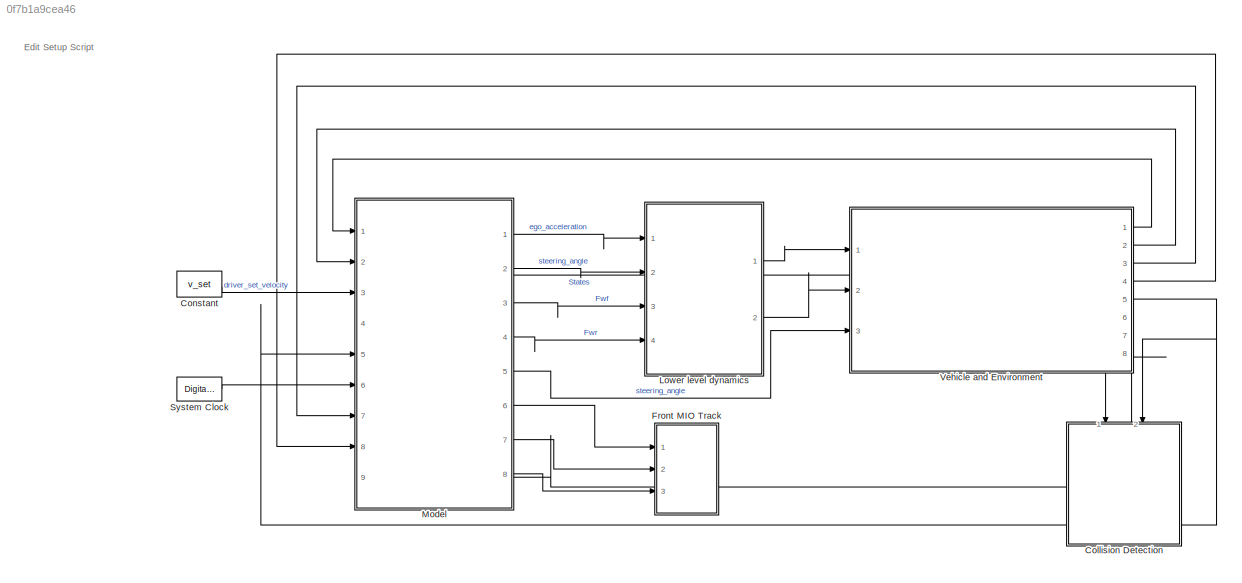
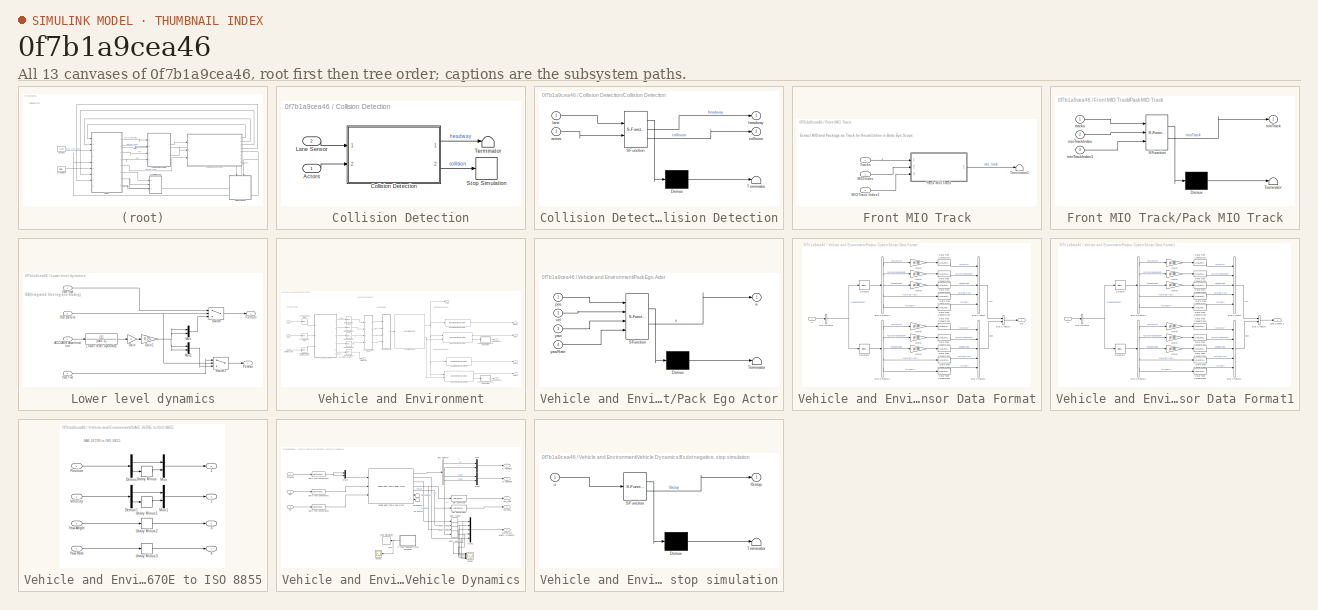
[diagram: thumbnail index - all 13 canvases of the model, root first then tree order]
MODEL slx_0f7b1a9cea46
KIND model
CONFIG AbsTol = auto
CONFIG EnableMultiTasking = off
CONFIG FixedStep = auto
CONFIG MaxStep = auto
CONFIG MinStep = auto
CONFIG PostLoadFcn = helperLFSetUp
CONFIG RelTol = 1e-3
CONFIG SampleTimeConstraint = Unconstrained
CONFIG SolverName = VariableStepAuto
CONFIG StartTime = 0.0
CONFIG StopTime = simStopTime
BLOCK [SubSystem] Collision Detection
  Ports = [2]
  RequestExecContextInheritance = off
BLOCK [Inport] Collision Detection/Actors
BLOCK [SubSystem] Collision Detection/Collision Detection
  ErrorFcn = Stateflow.Translate.translate
  PermitHierarchicalResolution = ExplicitOnly
  Ports = [2, 2]
  RequestExecContextInheritance = off
  SFBlockType = MATLAB Function
  TreatAsAtomicUnit = on
BLOCK [Demux] Collision Detection/Collision Detection/ Demux 
  Outputs = 1
  Ports = [1, 1]
BLOCK [S-Function] Collision Detection/Collision Detection/ SFunction 
  EnableBusSupport = on
  FunctionName = sf_sfun
  PortCounts = [2 3]
  Ports = [2, 3]
  SFcnIsStateOwnerBlock = off
  SFunctionDeploymentMode = off
  Tag = Stateflow S-Function 1
BLOCK [Terminator] Collision Detection/Collision Detection/ Terminator 
BLOCK [Inport] Collision Detection/Collision Detection/actors
  Port = 2
BLOCK [Outport] Collision Detection/Collision Detection/collision
  Port = 2
  VectorParamsAs1DForOutWhenUnconnected = off
BLOCK [Outport] Collision Detection/Collision Detection/headway
  VectorParamsAs1DForOutWhenUnconnected = off
BLOCK [Inport] Collision Detection/Collision Detection/lane
BLOCK [Inport] Collision Detection/Lane Sensor
  Port = 2
BLOCK [Stop] Collision Detection/Stop Simulation
BLOCK [Terminator] Collision Detection/Terminator
BLOCK [Constant] Constant
  SampleTime = Ts
  Value = v_set
BLOCK [SubSystem] Front MIO Track
  Ports = [3]
  RequestExecContextInheritance = off
BLOCK [Inport] Front MIO Track/MIO Index
  Port = 2
BLOCK [Inport] Front MIO Track/MIO Track Index1
  Port = 3
BLOCK [SubSystem] Front MIO Track/Pack MIO Track
  ErrorFcn = Stateflow.Translate.translate
  PermitHierarchicalResolution = ExplicitOnly
  Ports = [3, 1]
  RequestExecContextInheritance = off
  SFBlockType = MATLAB Function
  TreatAsAtomicUnit = on
BLOCK [Demux] Front MIO Track/Pack MIO Track/ Demux 
  Outputs = 1
  Ports = [1, 1]
BLOCK [S-Function] Front MIO Track/Pack MIO Track/ SFunction 
  EnableBusSupport = on
  FunctionName = sf_sfun
  PortCounts = [3 2]
  Ports = [3, 2]
  SFcnIsStateOwnerBlock = off
  SFunctionDeploymentMode = off
  Tag = Stateflow S-Function 2
BLOCK [Terminator] Front MIO Track/Pack MIO Track/ Terminator 
BLOCK [Outport] Front MIO Track/Pack MIO Track/mioTrack
  VectorParamsAs1DForOutWhenUnconnected = off
BLOCK [Inport] Front MIO Track/Pack MIO Track/mioTrackIndex
  Port = 2
BLOCK [Inport] Front MIO Track/Pack MIO Track/mioTrackIndex1
  Port = 3
BLOCK [Inport] Front MIO Track/Pack MIO Track/tracks
BLOCK [Terminator] Front MIO Track/Terminator1
BLOCK [Inport] Front MIO Track/Tracks
BLOCK [SubSystem] Lower level dynamics
  Ports = [4, 2]
  RequestExecContextInheritance = off
BLOCK [Inport] Lower level dynamics/ACC//AEB Acceleration
BLOCK [Outport] Lower level dynamics/Fx front
  VectorParamsAs1DForOutWhenUnconnected = off
BLOCK [Outport] Lower level dynamics/Fx rear
  Port = 2
  VectorParamsAs1DForOutWhenUnconnected = off
BLOCK [Gain] Lower level dynamics/Gain
  Gain = m
BLOCK [Gain] Lower level dynamics/Gain1
  Gain = 0.25
BLOCK [Inport] Lower level dynamics/ISB Fwf
  Port = 3
BLOCK [Inport] Lower level dynamics/ISB Fwr
  Port = 4
BLOCK [Inport] Lower level dynamics/ISB statuts
  Port = 2
BLOCK [TransferFcn] Lower level dynamics/Lower level dynamics
  Denominator = [tau 1]
BLOCK [Mux] Lower level dynamics/Mux
  DisplayOption = bar
  Inputs = 2
  Ports = [2, 1]
BLOCK [Mux] Lower level dynamics/Mux1
  DisplayOption = bar
  Inputs = 2
  Ports = [2, 1]
BLOCK [Switch] Lower level dynamics/Switch
  Criteria = u2 ~= 0
  InputSameDT = off
  SaturateOnIntegerOverflow = off
BLOCK [Switch] Lower level dynamics/Switch1
  Criteria = u2 ~= 0
  InputSameDT = off
  SaturateOnIntegerOverflow = off
BLOCK [ModelReference] Model
  ModelNameDialog = Controller.slx
  ModelReferenceVersion = 3.8
  Ports = [9, 8]
BLOCK [DigitalClock] System Clock
  SampleTime = Ts
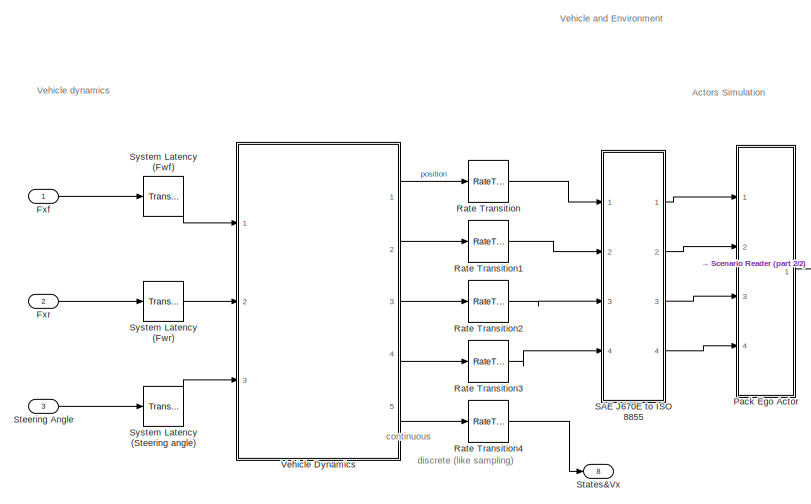
[diagram: Vehicle and Environment - part 1/2, middle left region]
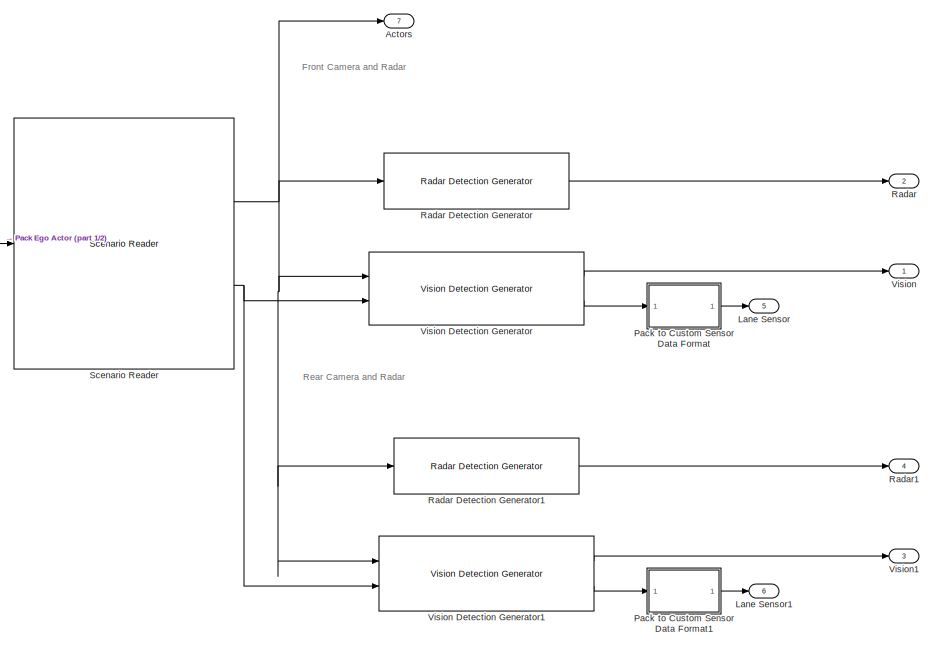
[diagram: Vehicle and Environment - part 2/2, right side, full height]
BLOCK [SubSystem] Vehicle and Environment
  PortSchema = {"entries":[{"content":{"sides":[{"content":{"connectorIds":["In1","In2","In3"]},"type":"ConnectorPlacement.EquallySpacedRectSide","uuid":"aa8441a5-2187-4ae6-b6bb-7d59e3966398"},{"content":{"connectorIds":["Out1","Out2","Out3","Out4","Out5"],"side":"RIGHT"},"type":"ConnectorPlacement.EquallySpacedRectSide","uuid":"2463696f-436c-42ea-9ab5-5fe7e39bf1c6"},{"content":{"connectorIds":["Out8"],"side":"T...<+445ch>
  Ports = [3, 8]
  RequestExecContextInheritance = off
BLOCK [Outport] Vehicle and Environment/Actors
  Port = 7
  VectorParamsAs1DForOutWhenUnconnected = off
BLOCK [Inport] Vehicle and Environment/Fxf
  Unit = N
BLOCK [Inport] Vehicle and Environment/Fxr
  Port = 2
  Unit = N
BLOCK [Outport] Vehicle and Environment/Lane Sensor
  Port = 5
  VectorParamsAs1DForOutWhenUnconnected = off
BLOCK [Outport] Vehicle and Environment/Lane Sensor1
  Port = 6
  VectorParamsAs1DForOutWhenUnconnected = off
BLOCK [SubSystem] Vehicle and Environment/Pack Ego Actor
  ErrorFcn = Stateflow.Translate.translate
  PermitHierarchicalResolution = ExplicitOnly
  Ports = [4, 1]
  RequestExecContextInheritance = off
  SFBlockType = MATLAB Function
  TreatAsAtomicUnit = on
BLOCK [Demux] Vehicle and Environment/Pack Ego Actor/ Demux 
  Outputs = 1
  Ports = [1, 1]
BLOCK [S-Function] Vehicle and Environment/Pack Ego Actor/ SFunction 
  EnableBusSupport = on
  FunctionName = sf_sfun
  PortCounts = [4 2]
  Ports = [4, 2]
  SFcnIsStateOwnerBlock = off
  SFunctionDeploymentMode = off
  Tag = Stateflow S-Function 5
BLOCK [Terminator] Vehicle and Environment/Pack Ego Actor/ Terminator 
BLOCK [Outport] Vehicle and Environment/Pack Ego Actor/a
  VectorParamsAs1DForOutWhenUnconnected = off
BLOCK [Inport] Vehicle and Environment/Pack Ego Actor/pos
BLOCK [Inport] Vehicle and Environment/Pack Ego Actor/vel
  Port = 2
BLOCK [Inport] Vehicle and Environment/Pack Ego Actor/yaw
  Port = 3
BLOCK [Inport] Vehicle and Environment/Pack Ego Actor/yawRate
  Port = 4
BLOCK [SubSystem] Vehicle and Environment/Pack to Custom Sensor Data Format
  Ports = [1, 1]
  RequestExecContextInheritance = off
BLOCK [BusCreator] Vehicle and Environment/Pack to Custom Sensor Data Format/Bus Creator
  DisplayOption = bar
  InheritFromInputs = on
  Inputs = Curvature,CurvatureDerivative,HeadingAngle,LateralOffset,Strength
  OutDataTypeStr = Bus: LaneSensorBoundaries
  Ports = [5, 1]
BLOCK [BusCreator] Vehicle and Environment/Pack to Custom Sensor Data Format/Bus Creator1
  DisplayOption = bar
  InheritFromInputs = on
  Inputs = Curvature,CurvatureDerivative,HeadingAngle,LateralOffset,Strength
  OutDataTypeStr = Bus: LaneSensorBoundaries
  Ports = [5, 1]
BLOCK [BusCreator] Vehicle and Environment/Pack to Custom Sensor Data Format/Bus Creator2
  DisplayOption = bar
  InheritFromInputs = on
  Inputs = Left,Right
  OutDataTypeStr = Bus: LaneSensor
  Ports = [2, 1]
BLOCK [BusSelector] Vehicle and Environment/Pack to Custom Sensor Data Format/Bus Selector
  OutputSignals = LaneBoundaries
  Ports = [1, 1]
BLOCK [BusSelector] Vehicle and Environment/Pack to Custom Sensor Data Format/Bus Selector1
  OutputSignals = Curvature,CurvatureDerivative,HeadingAngle,LateralOffset,Strength
  Ports = [1, 5]
BLOCK [BusSelector] Vehicle and Environment/Pack to Custom Sensor Data Format/Bus Selector2
  OutputSignals = Curvature,CurvatureDerivative,HeadingAngle,LateralOffset,Strength
  Ports = [1, 5]
BLOCK [DataTypeConversion] Vehicle and Environment/Pack to Custom Sensor Data Format/Data Type Conversion
  RndMeth = Floor
  SaturateOnIntegerOverflow = off
BLOCK [DataTypeConversion] Vehicle and Environment/Pack to Custom Sensor Data Format/Data Type Conversion1
  RndMeth = Floor
  SaturateOnIntegerOverflow = off
BLOCK [DataTypeConversion] Vehicle and Environment/Pack to Custom Sensor Data Format/Data Type Conversion2
  RndMeth = Floor
  SaturateOnIntegerOverflow = off
BLOCK [DataTypeConversion] Vehicle and Environment/Pack to Custom Sensor Data Format/Data Type Conversion3
  RndMeth = Floor
  SaturateOnIntegerOverflow = off
BLOCK [DataTypeConversion] Vehicle and Environment/Pack to Custom Sensor Data Format/Data Type Conversion4
  RndMeth = Floor
  SaturateOnIntegerOverflow = off
BLOCK [DataTypeConversion] Vehicle and Environment/Pack to Custom Sensor Data Format/Data Type Conversion5
  RndMeth = Floor
  SaturateOnIntegerOverflow = off
BLOCK [DataTypeConversion] Vehicle and Environment/Pack to Custom Sensor Data Format/Data Type Conversion6
  RndMeth = Floor
  SaturateOnIntegerOverflow = off
BLOCK [DataTypeConversion] Vehicle and Environment/Pack to Custom Sensor Data Format/Data Type Conversion7
  RndMeth = Floor
  SaturateOnIntegerOverflow = off
BLOCK [DataTypeConversion] Vehicle and Environment/Pack to Custom Sensor Data Format/Data Type Conversion8
  RndMeth = Floor
  SaturateOnIntegerOverflow = off
BLOCK [DataTypeConversion] Vehicle and Environment/Pack to Custom Sensor Data Format/Data Type Conversion9
  RndMeth = Floor
  SaturateOnIntegerOverflow = off
BLOCK [Gain] Vehicle and Environment/Pack to Custom Sensor Data Format/Gain1
  Gain = pi/180
BLOCK [Gain] Vehicle and Environment/Pack to Custom Sensor Data Format/Gain2
  Gain = pi/180
BLOCK [Gain] Vehicle and Environment/Pack to Custom Sensor Data Format/Gain3
  Gain = pi/180
BLOCK [Gain] Vehicle and Environment/Pack to Custom Sensor Data Format/Gain4
  Gain = pi/180
BLOCK [Gain] Vehicle and Environment/Pack to Custom Sensor Data Format/Gain5
  Gain = pi/180
BLOCK [Gain] Vehicle and Environment/Pack to Custom Sensor Data Format/Gain7
  Gain = pi/180
BLOCK [Inport] Vehicle and Environment/Pack to Custom Sensor Data Format/In
BLOCK [Outport] Vehicle and Environment/Pack to Custom Sensor Data Format/Out
  VectorParamsAs1DForOutWhenUnconnected = off
BLOCK [Selector] Vehicle and Environment/Pack to Custom Sensor Data Format/Selector
  IndexOptions = Index vector (dialog)
  Indices = 1
  InputPortWidth = 2
  OutputSizes = 1
  Ports = [1, 1]
BLOCK [Selector] Vehicle and Environment/Pack to Custom Sensor Data Format/Selector1
  IndexOptions = Index vector (dialog)
  Indices = 2
  InputPortWidth = 2
  OutputSizes = 1
  Ports = [1, 1]
BLOCK [SubSystem] Vehicle and Environment/Pack to Custom Sensor Data Format1
  Ports = [1, 1]
  RequestExecContextInheritance = off
BLOCK [BusCreator] Vehicle and Environment/Pack to Custom Sensor Data Format1/Bus Creator
  DisplayOption = bar
  InheritFromInputs = on
  Inputs = Curvature,CurvatureDerivative,HeadingAngle,LateralOffset,Strength
  OutDataTypeStr = Bus: LaneSensorBoundaries
  Ports = [5, 1]
BLOCK [BusCreator] Vehicle and Environment/Pack to Custom Sensor Data Format1/Bus Creator1
  DisplayOption = bar
  InheritFromInputs = on
  Inputs = Curvature,CurvatureDerivative,HeadingAngle,LateralOffset,Strength
  OutDataTypeStr = Bus: LaneSensorBoundaries
  Ports = [5, 1]
BLOCK [BusCreator] Vehicle and Environment/Pack to Custom Sensor Data Format1/Bus Creator2
  DisplayOption = bar
  InheritFromInputs = on
  Inputs = Left,Right
  OutDataTypeStr = Bus: LaneSensor
  Ports = [2, 1]
BLOCK [BusSelector] Vehicle and Environment/Pack to Custom Sensor Data Format1/Bus Selector
  OutputSignals = LaneBoundaries
  Ports = [1, 1]
BLOCK [BusSelector] Vehicle and Environment/Pack to Custom Sensor Data Format1/Bus Selector1
  OutputSignals = Curvature,CurvatureDerivative,HeadingAngle,LateralOffset,Strength
  Ports = [1, 5]
BLOCK [BusSelector] Vehicle and Environment/Pack to Custom Sensor Data Format1/Bus Selector2
  OutputSignals = Curvature,CurvatureDerivative,HeadingAngle,LateralOffset,Strength
  Ports = [1, 5]
BLOCK [DataTypeConversion] Vehicle and Environment/Pack to Custom Sensor Data Format1/Data Type Conversion
  RndMeth = Floor
  SaturateOnIntegerOverflow = off
BLOCK [DataTypeConversion] Vehicle and Environment/Pack to Custom Sensor Data Format1/Data Type Conversion1
  RndMeth = Floor
  SaturateOnIntegerOverflow = off
BLOCK [DataTypeConversion] Vehicle and Environment/Pack to Custom Sensor Data Format1/Data Type Conversion2
  RndMeth = Floor
  SaturateOnIntegerOverflow = off
BLOCK [DataTypeConversion] Vehicle and Environment/Pack to Custom Sensor Data Format1/Data Type Conversion3
  RndMeth = Floor
  SaturateOnIntegerOverflow = off
BLOCK [DataTypeConversion] Vehicle and Environment/Pack to Custom Sensor Data Format1/Data Type Conversion4
  RndMeth = Floor
  SaturateOnIntegerOverflow = off
BLOCK [DataTypeConversion] Vehicle and Environment/Pack to Custom Sensor Data Format1/Data Type Conversion5
  RndMeth = Floor
  SaturateOnIntegerOverflow = off
BLOCK [DataTypeConversion] Vehicle and Environment/Pack to Custom Sensor Data Format1/Data Type Conversion6
  RndMeth = Floor
  SaturateOnIntegerOverflow = off
BLOCK [DataTypeConversion] Vehicle and Environment/Pack to Custom Sensor Data Format1/Data Type Conversion7
  RndMeth = Floor
  SaturateOnIntegerOverflow = off
BLOCK [DataTypeConversion] Vehicle and Environment/Pack to Custom Sensor Data Format1/Data Type Conversion8
  RndMeth = Floor
  SaturateOnIntegerOverflow = off
BLOCK [DataTypeConversion] Vehicle and Environment/Pack to Custom Sensor Data Format1/Data Type Conversion9
  RndMeth = Floor
  SaturateOnIntegerOverflow = off
BLOCK [Gain] Vehicle and Environment/Pack to Custom Sensor Data Format1/Gain1
  Gain = pi/180
BLOCK [Gain] Vehicle and Environment/Pack to Custom Sensor Data Format1/Gain2
  Gain = pi/180
BLOCK [Gain] Vehicle and Environment/Pack to Custom Sensor Data Format1/Gain3
  Gain = pi/180
BLOCK [Gain] Vehicle and Environment/Pack to Custom Sensor Data Format1/Gain4
  Gain = pi/180
BLOCK [Gain] Vehicle and Environment/Pack to Custom Sensor Data Format1/Gain5
  Gain = pi/180
BLOCK [Gain] Vehicle and Environment/Pack to Custom Sensor Data Format1/Gain7
  Gain = pi/180
BLOCK [Inport] Vehicle and Environment/Pack to Custom Sensor Data Format1/In
BLOCK [Outport] Vehicle and Environment/Pack to Custom Sensor Data Format1/Lane Sensor 1
  VectorParamsAs1DForOutWhenUnconnected = off
BLOCK [Selector] Vehicle and Environment/Pack to Custom Sensor Data Format1/Selector
  IndexOptions = Index vector (dialog)
  Indices = 1
  InputPortWidth = 2
  OutputSizes = 1
  Ports = [1, 1]
BLOCK [Selector] Vehicle and Environment/Pack to Custom Sensor Data Format1/Selector1
  IndexOptions = Index vector (dialog)
  Indices = 2
  InputPortWidth = 2
  OutputSizes = 1
  Ports = [1, 1]
BLOCK [Outport] Vehicle and Environment/Radar
  Port = 2
  VectorParamsAs1DForOutWhenUnconnected = off
BLOCK [Reference] Vehicle and Environment/Radar Detection Generator  REF=drivingscenarioandsensors/Radar Detection Generator
  Ports = [1, 1]
  SourceBlock = drivingscenarioandsensors/Radar Detection Generator
  SourceProductBaseCode = DR
  SourceType = radarDetectionGenerator
BLOCK [Reference] Vehicle and Environment/Radar Detection Generator1  REF=drivingscenarioandsensors/Radar Detection Generator
  Ports = [1, 1]
  SourceBlock = drivingscenarioandsensors/Radar Detection Generator
  SourceProductBaseCode = DR
  SourceType = radarDetectionGenerator
BLOCK [Outport] Vehicle and Environment/Radar1
  Port = 4
  VectorParamsAs1DForOutWhenUnconnected = off
BLOCK [RateTransition] Vehicle and Environment/Rate Transition
  OutPortSampleTime = Ts
BLOCK [RateTransition] Vehicle and Environment/Rate Transition1
  OutPortSampleTime = Ts
BLOCK [RateTransition] Vehicle and Environment/Rate Transition2
  OutPortSampleTime = Ts
BLOCK [RateTransition] Vehicle and Environment/Rate Transition3
  OutPortSampleTime = Ts
BLOCK [RateTransition] Vehicle and Environment/Rate Transition4
  OutPortSampleTime = Ts
BLOCK [SubSystem] Vehicle and Environment/SAE J670E to ISO 8855
  Ports = [4, 4]
  RequestExecContextInheritance = off
BLOCK [Outport] Vehicle and Environment/SAE J670E to ISO 8855/1
  VectorParamsAs1DForOutWhenUnconnected = off
BLOCK [Outport] Vehicle and Environment/SAE J670E to ISO 8855/2
  Port = 2
  VectorParamsAs1DForOutWhenUnconnected = off
BLOCK [Outport] Vehicle and Environment/SAE J670E to ISO 8855/3
  Port = 3
  VectorParamsAs1DForOutWhenUnconnected = off
BLOCK [Outport] Vehicle and Environment/SAE J670E to ISO 8855/4
  Port = 4
  VectorParamsAs1DForOutWhenUnconnected = off
BLOCK [Demux] Vehicle and Environment/SAE J670E to ISO 8855/Demux
  Outputs = 2
  Ports = [1, 2]
BLOCK [Demux] Vehicle and Environment/SAE J670E to ISO 8855/Demux1
  Outputs = 2
  Ports = [1, 2]
BLOCK [Mux] Vehicle and Environment/SAE J670E to ISO 8855/Mux
  DisplayOption = bar
  Inputs = 2
  Ports = [2, 1]
BLOCK [Mux] Vehicle and Environment/SAE J670E to ISO 8855/Mux1
  DisplayOption = bar
  Inputs = 2
  Ports = [2, 1]
BLOCK [Inport] Vehicle and Environment/SAE J670E to ISO 8855/Position
  Unit = m
BLOCK [UnaryMinus] Vehicle and Environment/SAE J670E to ISO 8855/Unary Minus
BLOCK [UnaryMinus] Vehicle and Environment/SAE J670E to ISO 8855/Unary Minus1
BLOCK [UnaryMinus] Vehicle and Environment/SAE J670E to ISO 8855/Unary Minus2
BLOCK [UnaryMinus] Vehicle and Environment/SAE J670E to ISO 8855/Unary Minus3
BLOCK [Inport] Vehicle and Environment/SAE J670E to ISO 8855/Velocity
  Port = 2
  Unit = m/s
BLOCK [Inport] Vehicle and Environment/SAE J670E to ISO 8855/Yaw Angle
  Port = 3
  Unit = deg
BLOCK [Inport] Vehicle and Environment/SAE J670E to ISO 8855/Yaw Rate
  Port = 4
  Unit = deg/s
BLOCK [Reference] Vehicle and Environment/Scenario Reader  REF=drivingscenarioandsensors/Scenario Reader
  Ports = [1, 2]
  SourceBlock = drivingscenarioandsensors/Scenario Reader
  SourceProductBaseCode = DR
  SourceType = driving.scenario.internal.ScenarioReader
BLOCK [Outport] Vehicle and Environment/States&Vx
  Port = 8
  VectorParamsAs1DForOutWhenUnconnected = off
BLOCK [Inport] Vehicle and Environment/Steering Angle
  Port = 3
  Unit = rad
BLOCK [TransportDelay] Vehicle and Environment/System Latency (Fwf)
  DelayTime = Ts
  Ports = [1, 1]
BLOCK [TransportDelay] Vehicle and Environment/System Latency (Fwr)
  DelayTime = Ts
  Ports = [1, 1]
BLOCK [TransportDelay] Vehicle and Environment/System Latency (Steering angle)
  DelayTime = Ts
  Ports = [1, 1]
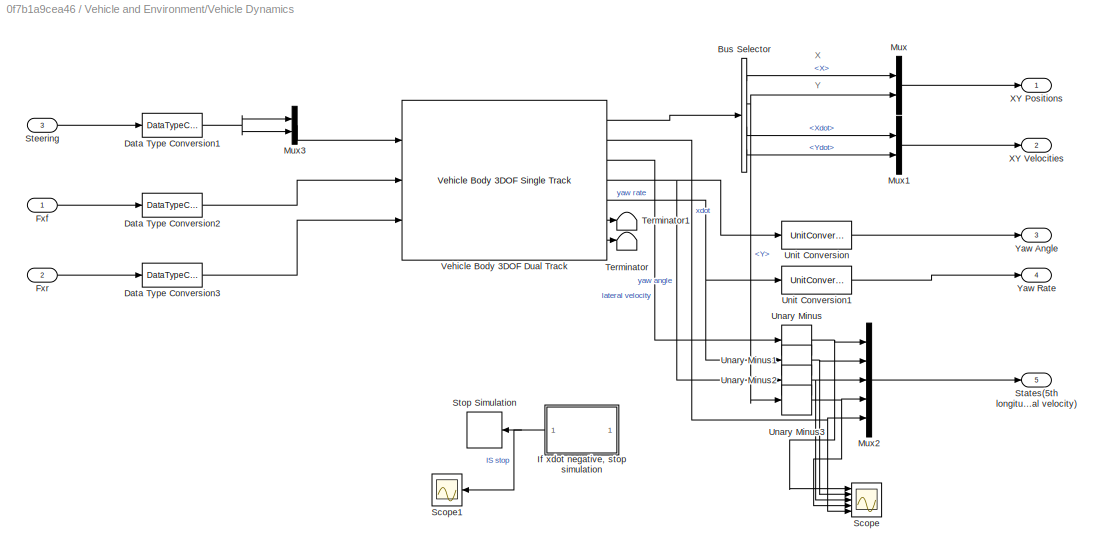
BLOCK [SubSystem] Vehicle and Environment/Vehicle Dynamics
  Ports = [3, 5]
  RequestExecContextInheritance = off
  VariantControl = Variant2
BLOCK [BusSelector] Vehicle and Environment/Vehicle Dynamics/Bus Selector
  OutputSignals = InertFrm.Cg.Disp.X,InertFrm.Cg.Disp.Y,InertFrm.Cg.Vel.Xdot,InertFrm.Cg.Vel.Ydot
  Ports = [1, 4]
BLOCK [DataTypeConversion] Vehicle and Environment/Vehicle Dynamics/Data Type Conversion1
  RndMeth = Floor
  SaturateOnIntegerOverflow = off
BLOCK [DataTypeConversion] Vehicle and Environment/Vehicle Dynamics/Data Type Conversion2
  RndMeth = Floor
  SaturateOnIntegerOverflow = off
BLOCK [DataTypeConversion] Vehicle and Environment/Vehicle Dynamics/Data Type Conversion3
  RndMeth = Floor
  SaturateOnIntegerOverflow = off
BLOCK [Inport] Vehicle and Environment/Vehicle Dynamics/Fxf
  Unit = N
BLOCK [Inport] Vehicle and Environment/Vehicle Dynamics/Fxr
  Port = 2
  Unit = N
BLOCK [SubSystem] Vehicle and Environment/Vehicle Dynamics/If xdot negative, stop simulation
  Commented = on
  ErrorFcn = Stateflow.Translate.translate
  PermitHierarchicalResolution = ExplicitOnly
  Ports = [1, 1]
  RequestExecContextInheritance = off
  SFBlockType = MATLAB Function
  TreatAsAtomicUnit = on
BLOCK [Demux] Vehicle and Environment/Vehicle Dynamics/If xdot negative, stop simulation/ Demux 
  Outputs = 1
  Ports = [1, 1]
BLOCK [S-Function] Vehicle and Environment/Vehicle Dynamics/If xdot negative, stop simulation/ SFunction 
  EnableBusSupport = on
  FunctionName = sf_sfun
  PortCounts = [1 2]
  Ports = [1, 2]
  SFcnIsStateOwnerBlock = off
  SFunctionDeploymentMode = off
  Tag = Stateflow S-Function 3
BLOCK [Terminator] Vehicle and Environment/Vehicle Dynamics/If xdot negative, stop simulation/ Terminator 
BLOCK [Outport] Vehicle and Environment/Vehicle Dynamics/If xdot negative, stop simulation/ISstop
BLOCK [Inport] Vehicle and Environment/Vehicle Dynamics/If xdot negative, stop simulation/u
BLOCK [Mux] Vehicle and Environment/Vehicle Dynamics/Mux
  DisplayOption = bar
  Inputs = 2
  Ports = [2, 1]
BLOCK [Mux] Vehicle and Environment/Vehicle Dynamics/Mux1
  DisplayOption = bar
  Inputs = 2
  Ports = [2, 1]
BLOCK [Mux] Vehicle and Environment/Vehicle Dynamics/Mux2
  DisplayOption = bar
  Inputs = 5
  Ports = [5, 1]
BLOCK [Mux] Vehicle and Environment/Vehicle Dynamics/Mux3
  DisplayOption = bar
  Inputs = 2
  Ports = [2, 1]
BLOCK [Scope] Vehicle and Environment/Vehicle Dynamics/Scope
  Floating = off
  NumInputPorts = 5
  Ports = [5]
  ScopeSpecificationString = Simulink.scopes.TimeScopeBlockCfg('CurrentConfiguration', extmgr.ConfigurationSet(extmgr.Configuration('Core','General UI',true),extmgr.Configuration('Core','Source UI',true),extmgr.Configuration('Sources','WiredSimulink',true),extmgr.Configuration('Visuals','Time Domain',true,'SerializedDisplays',{struct('MinYLimReal','-0.23274','MaxYLimReal','0.21555','YLabelReal','','MinYLimMag','0.00000','MaxY...<+4788ch>
BLOCK [Scope] Vehicle and Environment/Vehicle Dynamics/Scope1
  Commented = on
  Floating = off
  NumInputPorts = 1
  Ports = [1]
  ScopeSpecificationString = Simulink.scopes.TimeScopeBlockCfg('CurrentConfiguration', extmgr.ConfigurationSet(extmgr.Configuration('Core','General UI',true),extmgr.Configuration('Core','Source UI',true),extmgr.Configuration('Sources','WiredSimulink',true,'DataLoggingVariableName','ScopeData1'),extmgr.Configuration('Visuals','Time Domain',true,'SerializedDisplays',{struct('MinYLimReal','-0.125','MaxYLimReal','1.125','YLabelRe...<+1354ch>
BLOCK [Outport] Vehicle and Environment/Vehicle Dynamics/States(5th longitudinal velocity)
  Port = 5
  VectorParamsAs1DForOutWhenUnconnected = off
BLOCK [Inport] Vehicle and Environment/Vehicle Dynamics/Steering
  Port = 3
  Unit = rad
BLOCK [Stop] Vehicle and Environment/Vehicle Dynamics/Stop Simulation
  Commented = on
BLOCK [Terminator] Vehicle and Environment/Vehicle Dynamics/Terminator
BLOCK [Terminator] Vehicle and Environment/Vehicle Dynamics/Terminator1
BLOCK [UnaryMinus] Vehicle and Environment/Vehicle Dynamics/Unary Minus
BLOCK [UnaryMinus] Vehicle and Environment/Vehicle Dynamics/Unary Minus1
BLOCK [UnaryMinus] Vehicle and Environment/Vehicle Dynamics/Unary Minus2
BLOCK [UnaryMinus] Vehicle and Environment/Vehicle Dynamics/Unary Minus3
BLOCK [UnitConversion] Vehicle and Environment/Vehicle Dynamics/Unit Conversion
  OutputType = Inherit: Inherit via back propagation
BLOCK [UnitConversion] Vehicle and Environment/Vehicle Dynamics/Unit Conversion1
  OutputType = Inherit: Inherit via back propagation
BLOCK [Reference] Vehicle and Environment/Vehicle Dynamics/Vehicle Body 3DOF Dual Track  REF=autolibshared/Vehicle Body 3DOF Single Track
  Ports = [3, 7]
  SourceBlock = autolibshared/Vehicle Body 3DOF Single Track
  SourceProductBaseCode = PW,DR,MT,UV,VE
  SourceType = Vehicle Body 3DOF Lateral
BLOCK [Outport] Vehicle and Environment/Vehicle Dynamics/XY Positions
  Unit = m
  VectorParamsAs1DForOutWhenUnconnected = off
BLOCK [Outport] Vehicle and Environment/Vehicle Dynamics/XY Velocities
  Port = 2
  Unit = m/s
  VectorParamsAs1DForOutWhenUnconnected = off
BLOCK [Outport] Vehicle and Environment/Vehicle Dynamics/Yaw Angle
  Port = 3
  Unit = deg
  VectorParamsAs1DForOutWhenUnconnected = off
BLOCK [Outport] Vehicle and Environment/Vehicle Dynamics/Yaw Rate
  Port = 4
  Unit = degree/s
  VectorParamsAs1DForOutWhenUnconnected = off
BLOCK [Outport] Vehicle and Environment/Vision
  VectorParamsAs1DForOutWhenUnconnected = off
BLOCK [Reference] Vehicle and Environment/Vision Detection Generator  REF=drivingscenarioandsensors/Vision Detection Generator
  Ports = [2, 2]
  SourceBlock = drivingscenarioandsensors/Vision Detection Generator
  SourceProductBaseCode = DR
  SourceType = visionDetectionGenerator
BLOCK [Reference] Vehicle and Environment/Vision Detection Generator1  REF=drivingscenarioandsensors/Vision Detection Generator
  Ports = [2, 2]
  SourceBlock = drivingscenarioandsensors/Vision Detection Generator
  SourceProductBaseCode = DR
  SourceType = visionDetectionGenerator
BLOCK [Outport] Vehicle and Environment/Vision1
  Port = 3
  VectorParamsAs1DForOutWhenUnconnected = off
ANNOTATION (root): Edit Setup Script
ANNOTATION Front MIO Track: Extract MIO and Package as Track for Visualization in Birds Eye Scope
ANNOTATION Lower level dynamics: ISB(Integrated Steering and Braking)
ANNOTATION Vehicle and Environment: Vehicle and Environment
ANNOTATION Vehicle and Environment: Actors Simulation
ANNOTATION Vehicle and Environment: Front Camera and Radar
ANNOTATION Vehicle and Environment: Rear Camera and Radar
ANNOTATION Vehicle and Environment: Vehicle dynamics
ANNOTATION Vehicle and Environment: continuous
ANNOTATION Vehicle and Environment: discrete (like sampling)
ANNOTATION Vehicle and Environment/SAE J670E to ISO 8855: SAE J670E to ISO 8855
ANNOTATION Vehicle and Environment/Vehicle Dynamics: X
ANNOTATION Vehicle and Environment/Vehicle Dynamics: Y
LINE Collision Detection/Actors:1 -> Collision Detection/Collision Detection:2
LINE Collision Detection/Collision Detection:1 -> Collision Detection/Terminator:1
LINE Collision Detection/Collision Detection:2 -> Collision Detection/Stop Simulation:1
LINE Collision Detection/Lane Sensor:1 -> Collision Detection/Collision Detection:1
LINE Constant:1 -> Model:3
LINE Front MIO Track/MIO Index:1 -> Front MIO Track/Pack MIO Track:2
LINE Front MIO Track/MIO Track Index1:1 -> Front MIO Track/Pack MIO Track:3
LINE Front MIO Track/Pack MIO Track:1 -> Front MIO Track/Terminator1:1
LINE Front MIO Track/Tracks:1 -> Front MIO Track/Pack MIO Track:1
LINE Lower level dynamics/ACC//AEB Acceleration:1 -> Lower level dynamics/Lower level dynamics:1
NET Lower level dynamics/Gain1:1 -> Lower level dynamics/Mux1:1, Lower level dynamics/Mux1:2, Lower level dynamics/Mux:1, Lower level dynamics/Mux:2
LINE Lower level dynamics/Gain:1 -> Lower level dynamics/Gain1:1
LINE Lower level dynamics/ISB Fwf:1 -> Lower level dynamics/Switch:1
LINE Lower level dynamics/ISB Fwr:1 -> Lower level dynamics/Switch1:1
NET Lower level dynamics/ISB statuts:1 -> Lower level dynamics/Switch1:2, Lower level dynamics/Switch:2
LINE Lower level dynamics/Lower level dynamics:1 -> Lower level dynamics/Gain:1
LINE Lower level dynamics/Mux1:1 -> Lower level dynamics/Switch1:3
LINE Lower level dynamics/Mux:1 -> Lower level dynamics/Switch:3
LINE Lower level dynamics/Switch1:1 -> Lower level dynamics/Fx rear:1
LINE Lower level dynamics/Switch:1 -> Lower level dynamics/Fx front:1
LINE Lower level dynamics:1 -> Vehicle and Environment:1
LINE Lower level dynamics:2 -> Vehicle and Environment:2
LINE Model:1 -> Lower level dynamics:1
LINE Model:2 -> Lower level dynamics:2
LINE Model:3 -> Lower level dynamics:3
LINE Model:4 -> Lower level dynamics:4
LINE Model:5 -> Vehicle and Environment:3
LINE Model:6 -> Front MIO Track:1
LINE Model:7 -> Front MIO Track:2
LINE Model:8 -> Front MIO Track:3
LINE System Clock:1 -> Model:6
LINE Vehicle and Environment/Fxf:1 -> Vehicle and Environment/System Latency (Fwf):1
LINE Vehicle and Environment/Fxr:1 -> Vehicle and Environment/System Latency (Fwr):1
LINE Vehicle and Environment/Pack Ego Actor:1 -> Vehicle and Environment/Scenario Reader:1
LINE Vehicle and Environment/Pack to Custom Sensor Data Format/Bus Creator1:1 -> Vehicle and Environment/Pack to Custom Sensor Data Format/Bus Creator2:2
LINE Vehicle and Environment/Pack to Custom Sensor Data Format/Bus Creator2:1 -> Vehicle and Environment/Pack to Custom Sensor Data Format/Out:1
LINE Vehicle and Environment/Pack to Custom Sensor Data Format/Bus Creator:1 -> Vehicle and Environment/Pack to Custom Sensor Data Format/Bus Creator2:1
LINE Vehicle and Environment/Pack to Custom Sensor Data Format/Bus Selector1:1 -> Vehicle and Environment/Pack to Custom Sensor Data Format/Gain7:1
LINE Vehicle and Environment/Pack to Custom Sensor Data Format/Bus Selector1:2 -> Vehicle and Environment/Pack to Custom Sensor Data Format/Gain2:1
LINE Vehicle and Environment/Pack to Custom Sensor Data Format/Bus Selector1:3 -> Vehicle and Environment/Pack to Custom Sensor Data Format/Gain3:1
LINE Vehicle and Environment/Pack to Custom Sensor Data Format/Bus Selector1:4 -> Vehicle and Environment/Pack to Custom Sensor Data Format/Data Type Conversion3:1
LINE Vehicle and Environment/Pack to Custom Sensor Data Format/Bus Selector1:5 -> Vehicle and Environment/Pack to Custom Sensor Data Format/Data Type Conversion4:1
LINE Vehicle and Environment/Pack to Custom Sensor Data Format/Bus Selector2:1 -> Vehicle and Environment/Pack to Custom Sensor Data Format/Gain5:1
LINE Vehicle and Environment/Pack to Custom Sensor Data Format/Bus Selector2:2 -> Vehicle and Environment/Pack to Custom Sensor Data Format/Gain1:1
LINE Vehicle and Environment/Pack to Custom Sensor Data Format/Bus Selector2:3 -> Vehicle and Environment/Pack to Custom Sensor Data Format/Gain4:1
LINE Vehicle and Environment/Pack to Custom Sensor Data Format/Bus Selector2:4 -> Vehicle and Environment/Pack to Custom Sensor Data Format/Data Type Conversion8:1
LINE Vehicle and Environment/Pack to Custom Sensor Data Format/Bus Selector2:5 -> Vehicle and Environment/Pack to Custom Sensor Data Format/Data Type Conversion9:1
NET Vehicle and Environment/Pack to Custom Sensor Data Format/Bus Selector:1 -> Vehicle and Environment/Pack to Custom Sensor Data Format/Selector1:1, Vehicle and Environment/Pack to Custom Sensor Data Format/Selector:1
LINE Vehicle and Environment/Pack to Custom Sensor Data Format/Data Type Conversion1:1 -> Vehicle and Environment/Pack to Custom Sensor Data Format/Bus Creator:2
LINE Vehicle and Environment/Pack to Custom Sensor Data Format/Data Type Conversion2:1 -> Vehicle and Environment/Pack to Custom Sensor Data Format/Bus Creator:3
LINE Vehicle and Environment/Pack to Custom Sensor Data Format/Data Type Conversion3:1 -> Vehicle and Environment/Pack to Custom Sensor Data Format/Bus Creator:4
LINE Vehicle and Environment/Pack to Custom Sensor Data Format/Data Type Conversion4:1 -> Vehicle and Environment/Pack to Custom Sensor Data Format/Bus Creator:5
LINE Vehicle and Environment/Pack to Custom Sensor Data Format/Data Type Conversion5:1 -> Vehicle and Environment/Pack to Custom Sensor Data Format/Bus Creator1:1
LINE Vehicle and Environment/Pack to Custom Sensor Data Format/Data Type Conversion6:1 -> Vehicle and Environment/Pack to Custom Sensor Data Format/Bus Creator1:2
LINE Vehicle and Environment/Pack to Custom Sensor Data Format/Data Type Conversion7:1 -> Vehicle and Environment/Pack to Custom Sensor Data Format/Bus Creator1:3
LINE Vehicle and Environment/Pack to Custom Sensor Data Format/Data Type Conversion8:1 -> Vehicle and Environment/Pack to Custom Sensor Data Format/Bus Creator1:4
LINE Vehicle and Environment/Pack to Custom Sensor Data Format/Data Type Conversion9:1 -> Vehicle and Environment/Pack to Custom Sensor Data Format/Bus Creator1:5
LINE Vehicle and Environment/Pack to Custom Sensor Data Format/Data Type Conversion:1 -> Vehicle and Environment/Pack to Custom Sensor Data Format/Bus Creator:1
LINE Vehicle and Environment/Pack to Custom Sensor Data Format/Gain1:1 -> Vehicle and Environment/Pack to Custom Sensor Data Format/Data Type Conversion6:1
LINE Vehicle and Environment/Pack to Custom Sensor Data Format/Gain2:1 -> Vehicle and Environment/Pack to Custom Sensor Data Format/Data Type Conversion1:1
LINE Vehicle and Environment/Pack to Custom Sensor Data Format/Gain3:1 -> Vehicle and Environment/Pack to Custom Sensor Data Format/Data Type Conversion2:1
LINE Vehicle and Environment/Pack to Custom Sensor Data Format/Gain4:1 -> Vehicle and Environment/Pack to Custom Sensor Data Format/Data Type Conversion7:1
LINE Vehicle and Environment/Pack to Custom Sensor Data Format/Gain5:1 -> Vehicle and Environment/Pack to Custom Sensor Data Format/Data Type Conversion5:1
LINE Vehicle and Environment/Pack to Custom Sensor Data Format/Gain7:1 -> Vehicle and Environment/Pack to Custom Sensor Data Format/Data Type Conversion:1
LINE Vehicle and Environment/Pack to Custom Sensor Data Format/In:1 -> Vehicle and Environment/Pack to Custom Sensor Data Format/Bus Selector:1
LINE Vehicle and Environment/Pack to Custom Sensor Data Format/Selector1:1 -> Vehicle and Environment/Pack to Custom Sensor Data Format/Bus Selector2:1
LINE Vehicle and Environment/Pack to Custom Sensor Data Format/Selector:1 -> Vehicle and Environment/Pack to Custom Sensor Data Format/Bus Selector1:1
LINE Vehicle and Environment/Pack to Custom Sensor Data Format1/Bus Creator1:1 -> Vehicle and Environment/Pack to Custom Sensor Data Format1/Bus Creator2:2
LINE Vehicle and Environment/Pack to Custom Sensor Data Format1/Bus Creator2:1 -> Vehicle and Environment/Pack to Custom Sensor Data Format1/Lane Sensor 1:1
LINE Vehicle and Environment/Pack to Custom Sensor Data Format1/Bus Creator:1 -> Vehicle and Environment/Pack to Custom Sensor Data Format1/Bus Creator2:1
LINE Vehicle and Environment/Pack to Custom Sensor Data Format1/Bus Selector1:1 -> Vehicle and Environment/Pack to Custom Sensor Data Format1/Gain7:1
LINE Vehicle and Environment/Pack to Custom Sensor Data Format1/Bus Selector1:2 -> Vehicle and Environment/Pack to Custom Sensor Data Format1/Gain2:1
LINE Vehicle and Environment/Pack to Custom Sensor Data Format1/Bus Selector1:3 -> Vehicle and Environment/Pack to Custom Sensor Data Format1/Gain3:1
LINE Vehicle and Environment/Pack to Custom Sensor Data Format1/Bus Selector1:4 -> Vehicle and Environment/Pack to Custom Sensor Data Format1/Data Type Conversion3:1
LINE Vehicle and Environment/Pack to Custom Sensor Data Format1/Bus Selector1:5 -> Vehicle and Environment/Pack to Custom Sensor Data Format1/Data Type Conversion4:1
LINE Vehicle and Environment/Pack to Custom Sensor Data Format1/Bus Selector2:1 -> Vehicle and Environment/Pack to Custom Sensor Data Format1/Gain5:1
LINE Vehicle and Environment/Pack to Custom Sensor Data Format1/Bus Selector2:2 -> Vehicle and Environment/Pack to Custom Sensor Data Format1/Gain1:1
LINE Vehicle and Environment/Pack to Custom Sensor Data Format1/Bus Selector2:3 -> Vehicle and Environment/Pack to Custom Sensor Data Format1/Gain4:1
LINE Vehicle and Environment/Pack to Custom Sensor Data Format1/Bus Selector2:4 -> Vehicle and Environment/Pack to Custom Sensor Data Format1/Data Type Conversion8:1
LINE Vehicle and Environment/Pack to Custom Sensor Data Format1/Bus Selector2:5 -> Vehicle and Environment/Pack to Custom Sensor Data Format1/Data Type Conversion9:1
NET Vehicle and Environment/Pack to Custom Sensor Data Format1/Bus Selector:1 -> Vehicle and Environment/Pack to Custom Sensor Data Format1/Selector1:1, Vehicle and Environment/Pack to Custom Sensor Data Format1/Selector:1
LINE Vehicle and Environment/Pack to Custom Sensor Data Format1/Data Type Conversion1:1 -> Vehicle and Environment/Pack to Custom Sensor Data Format1/Bus Creator:2
LINE Vehicle and Environment/Pack to Custom Sensor Data Format1/Data Type Conversion2:1 -> Vehicle and Environment/Pack to Custom Sensor Data Format1/Bus Creator:3
LINE Vehicle and Environment/Pack to Custom Sensor Data Format1/Data Type Conversion3:1 -> Vehicle and Environment/Pack to Custom Sensor Data Format1/Bus Creator:4
LINE Vehicle and Environment/Pack to Custom Sensor Data Format1/Data Type Conversion4:1 -> Vehicle and Environment/Pack to Custom Sensor Data Format1/Bus Creator:5
LINE Vehicle and Environment/Pack to Custom Sensor Data Format1/Data Type Conversion5:1 -> Vehicle and Environment/Pack to Custom Sensor Data Format1/Bus Creator1:1
LINE Vehicle and Environment/Pack to Custom Sensor Data Format1/Data Type Conversion6:1 -> Vehicle and Environment/Pack to Custom Sensor Data Format1/Bus Creator1:2
LINE Vehicle and Environment/Pack to Custom Sensor Data Format1/Data Type Conversion7:1 -> Vehicle and Environment/Pack to Custom Sensor Data Format1/Bus Creator1:3
LINE Vehicle and Environment/Pack to Custom Sensor Data Format1/Data Type Conversion8:1 -> Vehicle and Environment/Pack to Custom Sensor Data Format1/Bus Creator1:4
LINE Vehicle and Environment/Pack to Custom Sensor Data Format1/Data Type Conversion9:1 -> Vehicle and Environment/Pack to Custom Sensor Data Format1/Bus Creator1:5
LINE Vehicle and Environment/Pack to Custom Sensor Data Format1/Data Type Conversion:1 -> Vehicle and Environment/Pack to Custom Sensor Data Format1/Bus Creator:1
LINE Vehicle and Environment/Pack to Custom Sensor Data Format1/Gain1:1 -> Vehicle and Environment/Pack to Custom Sensor Data Format1/Data Type Conversion6:1
LINE Vehicle and Environment/Pack to Custom Sensor Data Format1/Gain2:1 -> Vehicle and Environment/Pack to Custom Sensor Data Format1/Data Type Conversion1:1
LINE Vehicle and Environment/Pack to Custom Sensor Data Format1/Gain3:1 -> Vehicle and Environment/Pack to Custom Sensor Data Format1/Data Type Conversion2:1
LINE Vehicle and Environment/Pack to Custom Sensor Data Format1/Gain4:1 -> Vehicle and Environment/Pack to Custom Sensor Data Format1/Data Type Conversion7:1
LINE Vehicle and Environment/Pack to Custom Sensor Data Format1/Gain5:1 -> Vehicle and Environment/Pack to Custom Sensor Data Format1/Data Type Conversion5:1
LINE Vehicle and Environment/Pack to Custom Sensor Data Format1/Gain7:1 -> Vehicle and Environment/Pack to Custom Sensor Data Format1/Data Type Conversion:1
LINE Vehicle and Environment/Pack to Custom Sensor Data Format1/In:1 -> Vehicle and Environment/Pack to Custom Sensor Data Format1/Bus Selector:1
LINE Vehicle and Environment/Pack to Custom Sensor Data Format1/Selector1:1 -> Vehicle and Environment/Pack to Custom Sensor Data Format1/Bus Selector2:1
LINE Vehicle and Environment/Pack to Custom Sensor Data Format1/Selector:1 -> Vehicle and Environment/Pack to Custom Sensor Data Format1/Bus Selector1:1
LINE Vehicle and Environment/Pack to Custom Sensor Data Format1:1 -> Vehicle and Environment/Lane Sensor1:1
LINE Vehicle and Environment/Pack to Custom Sensor Data Format:1 -> Vehicle and Environment/Lane Sensor:1
LINE Vehicle and Environment/Radar Detection Generator1:1 -> Vehicle and Environment/Radar1:1
LINE Vehicle and Environment/Radar Detection Generator:1 -> Vehicle and Environment/Radar:1
LINE Vehicle and Environment/Rate Transition1:1 -> Vehicle and Environment/SAE J670E to ISO 8855:2
LINE Vehicle and Environment/Rate Transition2:1 -> Vehicle and Environment/SAE J670E to ISO 8855:3
LINE Vehicle and Environment/Rate Transition3:1 -> Vehicle and Environment/SAE J670E to ISO 8855:4
LINE Vehicle and Environment/Rate Transition4:1 -> Vehicle and Environment/States&Vx:1
LINE Vehicle and Environment/Rate Transition:1 -> Vehicle and Environment/SAE J670E to ISO 8855:1
LINE Vehicle and Environment/SAE J670E to ISO 8855/Demux1:1 -> Vehicle and Environment/SAE J670E to ISO 8855/Mux1:1
LINE Vehicle and Environment/SAE J670E to ISO 8855/Demux1:2 -> Vehicle and Environment/SAE J670E to ISO 8855/Unary Minus1:1
LINE Vehicle and Environment/SAE J670E to ISO 8855/Demux:1 -> Vehicle and Environment/SAE J670E to ISO 8855/Mux:1
LINE Vehicle and Environment/SAE J670E to ISO 8855/Demux:2 -> Vehicle and Environment/SAE J670E to ISO 8855/Unary Minus:1
LINE Vehicle and Environment/SAE J670E to ISO 8855/Mux1:1 -> Vehicle and Environment/SAE J670E to ISO 8855/2:1
LINE Vehicle and Environment/SAE J670E to ISO 8855/Mux:1 -> Vehicle and Environment/SAE J670E to ISO 8855/1:1
LINE Vehicle and Environment/SAE J670E to ISO 8855/Position:1 -> Vehicle and Environment/SAE J670E to ISO 8855/Demux:1
LINE Vehicle and Environment/SAE J670E to ISO 8855/Unary Minus1:1 -> Vehicle and Environment/SAE J670E to ISO 8855/Mux1:2
LINE Vehicle and Environment/SAE J670E to ISO 8855/Unary Minus2:1 -> Vehicle and Environment/SAE J670E to ISO 8855/3:1
LINE Vehicle and Environment/SAE J670E to ISO 8855/Unary Minus3:1 -> Vehicle and Environment/SAE J670E to ISO 8855/4:1
LINE Vehicle and Environment/SAE J670E to ISO 8855/Unary Minus:1 -> Vehicle and Environment/SAE J670E to ISO 8855/Mux:2
LINE Vehicle and Environment/SAE J670E to ISO 8855/Velocity:1 -> Vehicle and Environment/SAE J670E to ISO 8855/Demux1:1
LINE Vehicle and Environment/SAE J670E to ISO 8855/Yaw Angle:1 -> Vehicle and Environment/SAE J670E to ISO 8855/Unary Minus2:1
LINE Vehicle and Environment/SAE J670E to ISO 8855/Yaw Rate:1 -> Vehicle and Environment/SAE J670E to ISO 8855/Unary Minus3:1
LINE Vehicle and Environment/SAE J670E to ISO 8855:1 -> Vehicle and Environment/Pack Ego Actor:1
LINE Vehicle and Environment/SAE J670E to ISO 8855:2 -> Vehicle and Environment/Pack Ego Actor:2
LINE Vehicle and Environment/SAE J670E to ISO 8855:3 -> Vehicle and Environment/Pack Ego Actor:3
LINE Vehicle and Environment/SAE J670E to ISO 8855:4 -> Vehicle and Environment/Pack Ego Actor:4
NET Vehicle and Environment/Scenario Reader:1 -> Vehicle and Environment/Actors:1, Vehicle and Environment/Radar Detection Generator1:1, Vehicle and Environment/Radar Detection Generator:1, Vehicle and Environment/Vision Detection Generator1:1, Vehicle and Environment/Vision Detection Generator:1
NET Vehicle and Environment/Scenario Reader:2 -> Vehicle and Environment/Vision Detection Generator1:2, Vehicle and Environment/Vision Detection Generator:2
LINE Vehicle and Environment/Steering Angle:1 -> Vehicle and Environment/System Latency (Steering angle):1
LINE Vehicle and Environment/System Latency (Fwf):1 -> Vehicle and Environment/Vehicle Dynamics:1
LINE Vehicle and Environment/System Latency (Fwr):1 -> Vehicle and Environment/Vehicle Dynamics:2
LINE Vehicle and Environment/System Latency (Steering angle):1 -> Vehicle and Environment/Vehicle Dynamics:3
LINE Vehicle and Environment/Vehicle Dynamics/Bus Selector:1 -> Vehicle and Environment/Vehicle Dynamics/Mux:1
NET Vehicle and Environment/Vehicle Dynamics/Bus Selector:2 -> Vehicle and Environment/Vehicle Dynamics/Mux:2, Vehicle and Environment/Vehicle Dynamics/Unary Minus3:1
LINE Vehicle and Environment/Vehicle Dynamics/Bus Selector:3 -> Vehicle and Environment/Vehicle Dynamics/Mux1:1
LINE Vehicle and Environment/Vehicle Dynamics/Bus Selector:4 -> Vehicle and Environment/Vehicle Dynamics/Mux1:2
NET Vehicle and Environment/Vehicle Dynamics/Data Type Conversion1:1 -> Vehicle and Environment/Vehicle Dynamics/Mux3:1, Vehicle and Environment/Vehicle Dynamics/Mux3:2
LINE Vehicle and Environment/Vehicle Dynamics/Data Type Conversion2:1 -> Vehicle and Environment/Vehicle Dynamics/Vehicle Body 3DOF Dual Track:2
LINE Vehicle and Environment/Vehicle Dynamics/Data Type Conversion3:1 -> Vehicle and Environment/Vehicle Dynamics/Vehicle Body 3DOF Dual Track:3
LINE Vehicle and Environment/Vehicle Dynamics/Fxf:1 -> Vehicle and Environment/Vehicle Dynamics/Data Type Conversion2:1
LINE Vehicle and Environment/Vehicle Dynamics/Fxr:1 -> Vehicle and Environment/Vehicle Dynamics/Data Type Conversion3:1
NET Vehicle and Environment/Vehicle Dynamics/If xdot negative, stop simulation:1 -> Vehicle and Environment/Vehicle Dynamics/Scope1:1, Vehicle and Environment/Vehicle Dynamics/Stop Simulation:1
LINE Vehicle and Environment/Vehicle Dynamics/Mux1:1 -> Vehicle and Environment/Vehicle Dynamics/XY Velocities:1
LINE Vehicle and Environment/Vehicle Dynamics/Mux2:1 -> Vehicle and Environment/Vehicle Dynamics/States(5th longitudinal velocity):1
LINE Vehicle and Environment/Vehicle Dynamics/Mux3:1 -> Vehicle and Environment/Vehicle Dynamics/Vehicle Body 3DOF Dual Track:1
LINE Vehicle and Environment/Vehicle Dynamics/Mux:1 -> Vehicle and Environment/Vehicle Dynamics/XY Positions:1
LINE Vehicle and Environment/Vehicle Dynamics/Steering:1 -> Vehicle and Environment/Vehicle Dynamics/Data Type Conversion1:1
NET Vehicle and Environment/Vehicle Dynamics/Unary Minus1:1 -> Vehicle and Environment/Vehicle Dynamics/Mux2:2, Vehicle and Environment/Vehicle Dynamics/Scope:2
NET Vehicle and Environment/Vehicle Dynamics/Unary Minus2:1 -> Vehicle and Environment/Vehicle Dynamics/Mux2:3, Vehicle and Environment/Vehicle Dynamics/Scope:3
NET Vehicle and Environment/Vehicle Dynamics/Unary Minus3:1 -> Vehicle and Environment/Vehicle Dynamics/Mux2:4, Vehicle and Environment/Vehicle Dynamics/Scope:4
NET Vehicle and Environment/Vehicle Dynamics/Unary Minus:1 -> Vehicle and Environment/Vehicle Dynamics/Mux2:1, Vehicle and Environment/Vehicle Dynamics/Scope:1
LINE Vehicle and Environment/Vehicle Dynamics/Unit Conversion1:1 -> Vehicle and Environment/Vehicle Dynamics/Yaw Rate:1
LINE Vehicle and Environment/Vehicle Dynamics/Unit Conversion:1 -> Vehicle and Environment/Vehicle Dynamics/Yaw Angle:1
LINE Vehicle and Environment/Vehicle Dynamics/Vehicle Body 3DOF Dual Track:1 -> Vehicle and Environment/Vehicle Dynamics/Bus Selector:1
NET Vehicle and Environment/Vehicle Dynamics/Vehicle Body 3DOF Dual Track:2 -> Vehicle and Environment/Vehicle Dynamics/Mux2:5, Vehicle and Environment/Vehicle Dynamics/Scope:5
LINE Vehicle and Environment/Vehicle Dynamics/Vehicle Body 3DOF Dual Track:3 -> Vehicle and Environment/Vehicle Dynamics/Unary Minus:1
NET Vehicle and Environment/Vehicle Dynamics/Vehicle Body 3DOF Dual Track:4 -> Vehicle and Environment/Vehicle Dynamics/Unary Minus2:1, Vehicle and Environment/Vehicle Dynamics/Unit Conversion:1
NET Vehicle and Environment/Vehicle Dynamics/Vehicle Body 3DOF Dual Track:5 -> Vehicle and Environment/Vehicle Dynamics/Unary Minus1:1, Vehicle and Environment/Vehicle Dynamics/Unit Conversion1:1
LINE Vehicle and Environment/Vehicle Dynamics/Vehicle Body 3DOF Dual Track:6 -> Vehicle and Environment/Vehicle Dynamics/Terminator1:1
LINE Vehicle and Environment/Vehicle Dynamics/Vehicle Body 3DOF Dual Track:7 -> Vehicle and Environment/Vehicle Dynamics/Terminator:1
LINE Vehicle and Environment/Vehicle Dynamics:1 -> Vehicle and Environment/Rate Transition:1
LINE Vehicle and Environment/Vehicle Dynamics:2 -> Vehicle and Environment/Rate Transition1:1
LINE Vehicle and Environment/Vehicle Dynamics:3 -> Vehicle and Environment/Rate Transition2:1
LINE Vehicle and Environment/Vehicle Dynamics:4 -> Vehicle and Environment/Rate Transition3:1
LINE Vehicle and Environment/Vehicle Dynamics:5 -> Vehicle and Environment/Rate Transition4:1
LINE Vehicle and Environment/Vision Detection Generator1:1 -> Vehicle and Environment/Vision1:1
LINE Vehicle and Environment/Vision Detection Generator1:2 -> Vehicle and Environment/Pack to Custom Sensor Data Format1:1
LINE Vehicle and Environment/Vision Detection Generator:1 -> Vehicle and Environment/Vision:1
LINE Vehicle and Environment/Vision Detection Generator:2 -> Vehicle and Environment/Pack to Custom Sensor Data Format:1
LINE Vehicle and Environment:1 -> Model:1
LINE Vehicle and Environment:2 -> Model:2
LINE Vehicle and Environment:3 -> Model:7
LINE Vehicle and Environment:4 -> Model:8
NET Vehicle and Environment:5 -> Collision Detection:2, Model:5
LINE Vehicle and Environment:6 -> Model:9
LINE Vehicle and Environment:7 -> Collision Detection:1
LINE Vehicle and Environment:8 -> Model:4
note: NET lines group one-source signal fan-out (src -> all destinations, sorted); 1:1 wires keep LINE
CHART Collision Detection/Collision Detection states=1 transitions=1
  STATE_LABEL 'eML_blk_kernel()'
  STATE_LABEL 'SCRIPT:\nfunction [headway,collision] = collisionDetect(lane, actors)\n\n% If lane detection is not available, the ego car is assumed to be located\n% in the middle of its lane. The lane width is assumed to be 3.6m, typical\n% highway lane width.\nlaneWidth = 3.6;\nhalfLaneWidth = laneWidth/2;\n\n% left lane\nif lane.Left.Strength > 0.01\n    lb = [lane.Left.CurvatureDerivative/6,...\n        lane.Left.Curvat...<+952ch>'
CHART Front MIO Track/Pack MIO Track states=1 transitions=1
  STATE_LABEL 'eML_blk_kernel()'
  STATE_LABEL 'SCRIPT:\nfunction mioTrack = fcn(tracks, mioTrackIndex, mioTrackIndex1)\n% Extract MIO track and package for visualization in Birds Eye Scope\n\nmioTrack = tracks;\n\nif mioTrackIndex > 0 && mioTrackIndex1 > 0\n    % First track represents MIO\n    mioTrack.NumTracks = 2;\n    mioTrack.Tracks(1) = tracks.Tracks(mioTrackIndex);\n    mioTrack.Tracks(2) = tracks.Tracks(mioTrackIndex1);\nelseif mioTrackIndex > 0...<+260ch>'
CHART Vehicle and Environment/Vehicle Dynamics/If xdot negative, stop simulation states=1 transitions=1
  STATE_LABEL 'eML_blk_kernel()'
  STATE_LABEL 'SCRIPT:\nfunction ISstop = fcn(u)\nif u>0\n    ISstop = false;\nelse\n    ISstop = true;\nend\n'
CHART Vehicle and Environment/Pack Ego Actor states=1 transitions=1
  STATE_LABEL 'eML_blk_kernel()'
  STATE_LABEL "SCRIPT:\nfunction a = packEgo(pos,vel,yaw,yawRate)\n% Pack ego information into a single ego actor bus\n%\n% Imoprtant note:\n% Output is a bus of type BusActorsActors. This is the same bus used by the\n% Scenario Reader to output an individual actor. If you change the\n% output bus name of Scenario Reader change the output bus name here\n% as well by clicking on 'Edit Data' in the menu above.\n\na = struct...<+200ch>"
CHART  states=0 transitions=0
CHART  states=0 transitions=0
CHART  states=0 transitions=0
CHART  states=0 transitions=0
